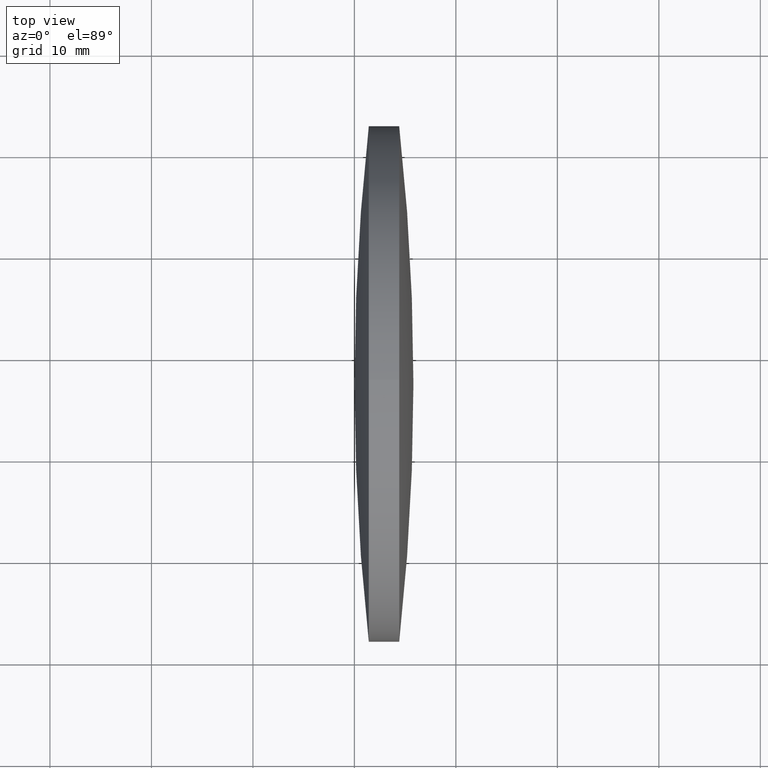
[diagram: clean part render]
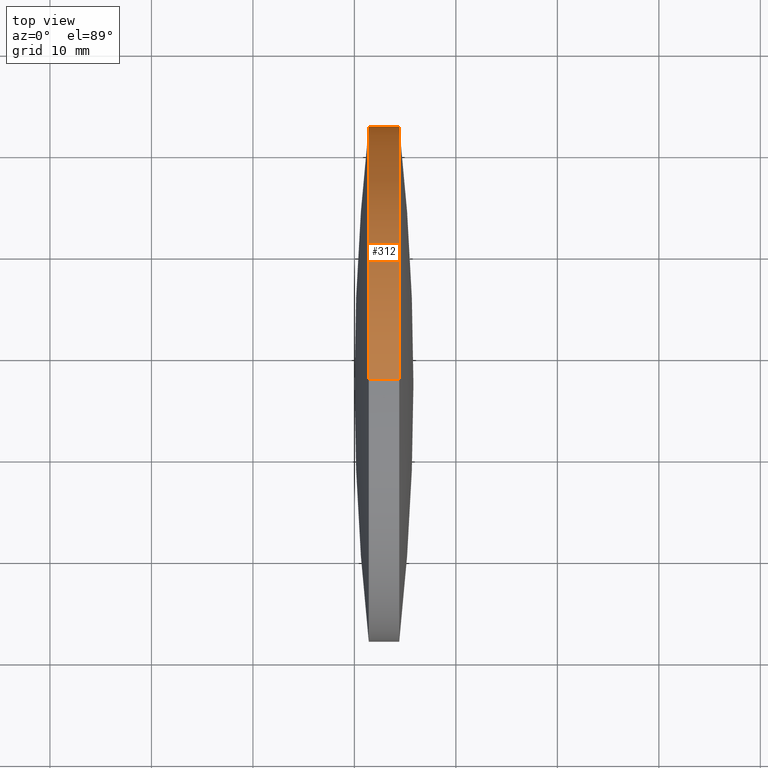
[diagram: same view with one face highlighted and labeled with its STEP entity id]
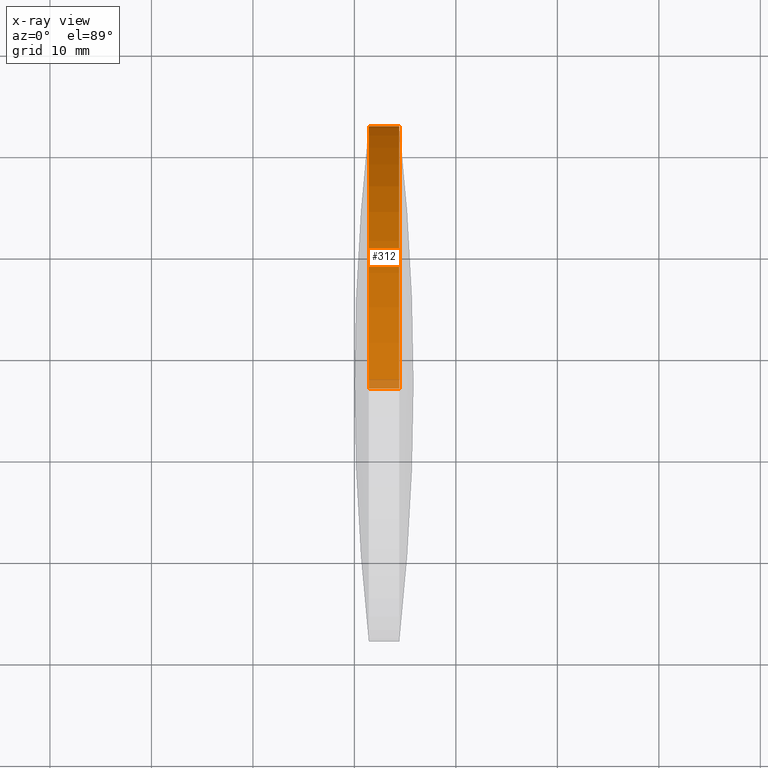
[diagram: x-ray of the same camera — body ghosted, the highlighted face saturated]
A machine part, top view. The second image highlights one B-rep face of the part: STEP entity #312.
The next image is the same camera in x-ray: the body ghosted, the highlighted face saturated — about 3% of this face is hidden behind the body in this view.
In plain terms, the highlighted cylindrical surface (partial cylindrical patch) has radius 25.4 mm, axis along (-1, -0, -0).
Its self-contained STEP definition (entity closure, byte-faithful):
#3 = DIRECTION ( 'NONE',  ( 0.0000000000000000000, 0.0000000000000000000, 1.000000000000000000 ) ) ;
#20 = LINE ( 'NONE', #142, #95 ) ;
#23 = CARTESIAN_POINT ( 'NONE',  ( 165.7441079421506900, 97.23222604636956100, -25.39999999999999100 ) ) ;
#25 = DIRECTION ( 'NONE',  ( -1.000000000000000000, -0.0000000000000000000, -0.0000000000000000000 ) ) ;
#36 = DIRECTION ( 'NONE',  ( 0.0000000000000000000, 0.0000000000000000000, 1.000000000000000000 ) ) ;
#37 = AXIS2_PLACEMENT_3D ( 'NONE', #264, #90, #96 ) ;
#39 = DIRECTION ( 'NONE',  ( -1.000000000000000000, -0.0000000000000000000, -0.0000000000000000000 ) ) ;
#41 = ORIENTED_EDGE ( 'NONE', *, *, #298, .F. ) ;
#62 = DIRECTION ( 'NONE',  ( -1.000000000000000000, -0.0000000000000000000, -0.0000000000000000000 ) ) ;
#65 = CARTESIAN_POINT ( 'NONE',  ( 165.7441079421506900, 97.23222604636956100, 0.0000000000000000000 ) ) ;
#75 = AXIS2_PLACEMENT_3D ( 'NONE', #199, #62, #249 ) ;
#76 = VECTOR ( 'NONE', #25, 1000.000000000000000 ) ;
#90 = DIRECTION ( 'NONE',  ( -1.000000000000000000, -0.0000000000000000000, -0.0000000000000000000 ) ) ;
#95 = VECTOR ( 'NONE', #222, 1000.000000000000000 ) ;
#96 = DIRECTION ( 'NONE',  ( 0.0000000000000000000, 0.0000000000000000000, 1.000000000000000000 ) ) ;
#100 = VERTEX_POINT ( 'NONE', #235 ) ;
#112 = CARTESIAN_POINT ( 'NONE',  ( 174.4163664064679400, 97.23222604636956100, -25.39999999999999100 ) ) ;
#123 = CIRCLE ( 'NONE', #306, 25.39999999999999100 ) ;
#128 = VERTEX_POINT ( 'NONE', #262 ) ;
#140 = DIRECTION ( 'NONE',  ( 0.0000000000000000000, 0.0000000000000000000, 1.000000000000000000 ) ) ;
#142 = CARTESIAN_POINT ( 'NONE',  ( 165.7441079421506900, 97.23222604636956100, 25.39999999999999100 ) ) ;
#155 = CIRCLE ( 'NONE', #37, 25.39999999999999100 ) ;
#157 = VERTEX_POINT ( 'NONE', #242 ) ;
#165 = CYLINDRICAL_SURFACE ( 'NONE', #276, 25.39999999999999100 ) ;
#166 = CARTESIAN_POINT ( 'NONE',  ( 174.4163664064679400, 97.23222604636956100, 25.39999999999999100 ) ) ;
#170 = VERTEX_POINT ( 'NONE', #166 ) ;
#175 = LINE ( 'NONE', #23, #76 ) ;
#178 = VERTEX_POINT ( 'NONE', #214 ) ;
#194 = CIRCLE ( 'NONE', #201, 25.39999999999999100 ) ;
#199 = CARTESIAN_POINT ( 'NONE',  ( 171.4164086921822200, 97.23222604636956100, 0.0000000000000000000 ) ) ;
#201 = AXIS2_PLACEMENT_3D ( 'NONE', #268, #225, #36 ) ;
#209 = EDGE_CURVE ( 'NONE', #217, #100, #175, .T. ) ;
#213 = ORIENTED_EDGE ( 'NONE', *, *, #316, .F. ) ;
#214 = CARTESIAN_POINT ( 'NONE',  ( 174.4163664064679700, 122.6322260463690700, 0.0000000000000000000 ) ) ;
#217 = VERTEX_POINT ( 'NONE', #112 ) ;
#220 = DIRECTION ( 'NONE',  ( -1.000000000000000000, -0.0000000000000000000, -0.0000000000000000000 ) ) ;
#222 = DIRECTION ( 'NONE',  ( -1.000000000000000000, -0.0000000000000000000, -0.0000000000000000000 ) ) ;
#225 = DIRECTION ( 'NONE',  ( -1.000000000000000000, -0.0000000000000000000, -0.0000000000000000000 ) ) ;
#233 = ORIENTED_EDGE ( 'NONE', *, *, #209, .T. ) ;
#234 = EDGE_CURVE ( 'NONE', #178, #217, #123, .T. ) ;
#235 = CARTESIAN_POINT ( 'NONE',  ( 171.4164086921822200, 97.23222604636956100, -25.39999999999999100 ) ) ;
#242 = CARTESIAN_POINT ( 'NONE',  ( 171.4164086921822200, 122.6322260463692300, 0.0000000000000000000 ) ) ;
#243 = FACE_OUTER_BOUND ( 'NONE', #256, .T. ) ;
#249 = DIRECTION ( 'NONE',  ( 0.0000000000000000000, 0.0000000000000000000, 1.000000000000000000 ) ) ;
#255 = EDGE_CURVE ( 'NONE', #170, #178, #155, .T. ) ;
#256 = EDGE_LOOP ( 'NONE', ( #283, #233, #213, #41, #336, #302 ) ) ;
#262 = CARTESIAN_POINT ( 'NONE',  ( 171.4164086921822200, 97.23222604636956100, 25.39999999999999100 ) ) ;
#264 = CARTESIAN_POINT ( 'NONE',  ( 174.4163664064679400, 97.23222604636956100, 0.0000000000000000000 ) ) ;
#268 = CARTESIAN_POINT ( 'NONE',  ( 171.4164086921822200, 97.23222604636956100, 0.0000000000000000000 ) ) ;
#276 = AXIS2_PLACEMENT_3D ( 'NONE', #65, #39, #140 ) ;
#283 = ORIENTED_EDGE ( 'NONE', *, *, #234, .T. ) ;
#298 = EDGE_CURVE ( 'NONE', #128, #157, #194, .T. ) ;
#302 = ORIENTED_EDGE ( 'NONE', *, *, #255, .T. ) ;
#306 = AXIS2_PLACEMENT_3D ( 'NONE', #322, #220, #3 ) ;
#310 = CIRCLE ( 'NONE', #75, 25.39999999999999100 ) ;
#312 = ADVANCED_FACE ( 'NONE', ( #243 ), #165, .T. ) ;
#316 = EDGE_CURVE ( 'NONE', #157, #100, #310, .T. ) ;
#322 = CARTESIAN_POINT ( 'NONE',  ( 174.4163664064679400, 97.23222604636956100, 0.0000000000000000000 ) ) ;
#336 = ORIENTED_EDGE ( 'NONE', *, *, #339, .F. ) ;
#339 = EDGE_CURVE ( 'NONE', #170, #128, #20, .T. ) ;